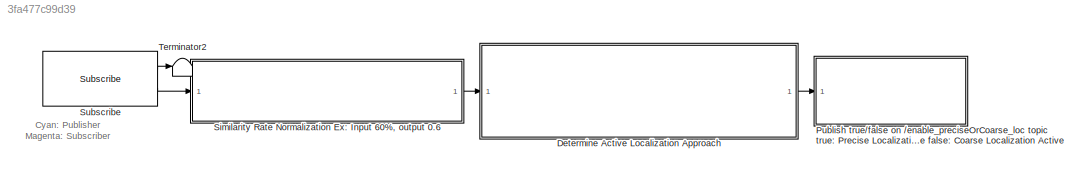
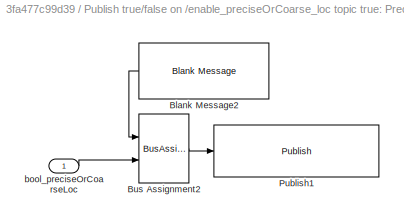
MODEL slx_3fa477c99d39
KIND model
CONFIG AbsTol = auto
CONFIG EnableMultiTasking = off
CONFIG FixedStep = auto
CONFIG MaxStep = auto
CONFIG MinStep = auto
CONFIG RelTol = 1e-3
CONFIG SampleTimeConstraint = Unconstrained
CONFIG SolverName = FixedStepAuto
CONFIG StartTime = 0.0
CONFIG StopTime = inf
WORKSPACE source: mxarray member
WORKSPACE SL_ROS_VariableLengthArrays_MaxSizes: object (value not decoded)
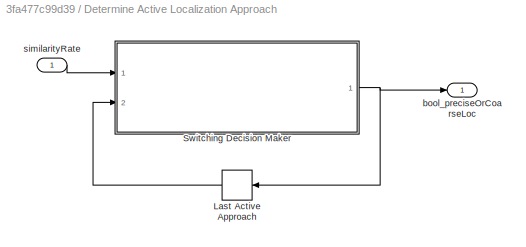
BLOCK [SubSystem] Determine Active Localization Approach
  Ports = [1, 1]
  RequestExecContextInheritance = off
BLOCK [Memory] Determine Active Localization Approach/Last Active Approach
  InitialCondition = false(1)
  NameLocation = top
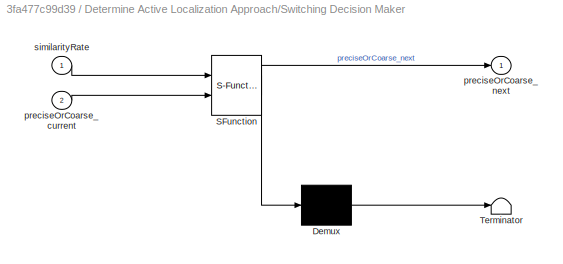
BLOCK [SubSystem] Determine Active Localization Approach/Switching Decision Maker
  ErrorFcn = Stateflow.Translate.translate
  PermitHierarchicalResolution = ExplicitOnly
  Ports = [2, 1]
  RequestExecContextInheritance = off
  SFBlockType = MATLAB Function
  TreatAsAtomicUnit = on
BLOCK [Demux] Determine Active Localization Approach/Switching Decision Maker/ Demux 
  Outputs = 1
  Ports = [1, 1]
BLOCK [S-Function] Determine Active Localization Approach/Switching Decision Maker/ SFunction 
  EnableBusSupport = on
  FunctionName = sf_sfun
  PortCounts = [2 2]
  Ports = [2, 2]
  SFcnIsStateOwnerBlock = off
  SFunctionDeploymentMode = off
  Tag = Stateflow S-Function 4
BLOCK [Terminator] Determine Active Localization Approach/Switching Decision Maker/ Terminator 
BLOCK [Inport] Determine Active Localization Approach/Switching Decision Maker/preciseOrCoarse_current
  Port = 2
BLOCK [Outport] Determine Active Localization Approach/Switching Decision Maker/preciseOrCoarse_next
  VectorParamsAs1DForOutWhenUnconnected = off
BLOCK [Inport] Determine Active Localization Approach/Switching Decision Maker/similarityRate
BLOCK [Outport] Determine Active Localization Approach/bool_preciseOrCoarseLoc
BLOCK [Inport] Determine Active Localization Approach/similarityRate
BLOCK [SubSystem] Publish true//false on //enable_preciseOrCoarse_loc topic true: Precise Localization Active false: Coarse Localization Active
  Ports = [1]
  RequestExecContextInheritance = off
BLOCK [Reference] Publish true//false on //enable_preciseOrCoarse_loc topic true: Precise Localization Active false: Coarse Localization Active/Blank Message2  REF=robotlib/Blank Message
  NameLocation = top
  Ports = [0, 1]
  SourceBlock = robotlib/Blank Message
  SourceProductBaseCode = RO
  SourceType = ROS Blank Message
BLOCK [BusAssignment] Publish true//false on //enable_preciseOrCoarse_loc topic true: Precise Localization Active false: Coarse Localization Active/Bus Assignment2
  AssignedSignals = Data
  Ports = [2, 1]
BLOCK [Reference] Publish true//false on //enable_preciseOrCoarse_loc topic true: Precise Localization Active false: Coarse Localization Active/Publish1  REF=robotlib/Publish
  Ports = [1]
  SourceBlock = robotlib/Publish
  SourceProductBaseCode = RO
  SourceType = ROS Publish
BLOCK [Inport] Publish true//false on //enable_preciseOrCoarse_loc topic true: Precise Localization Active false: Coarse Localization Active/bool_preciseOrCoarseLoc
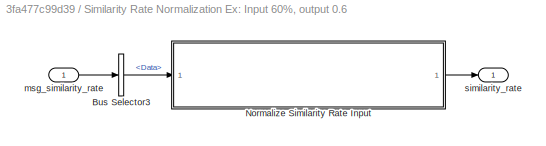
BLOCK [SubSystem] Similarity Rate Normalization Ex: Input 60%, output 0.6
  Ports = [1, 1]
  RequestExecContextInheritance = off
BLOCK [BusSelector] Similarity Rate Normalization Ex: Input 60%, output 0.6/Bus Selector3
  NameLocation = top
  OutputSignals = Data
  Ports = [1, 1]
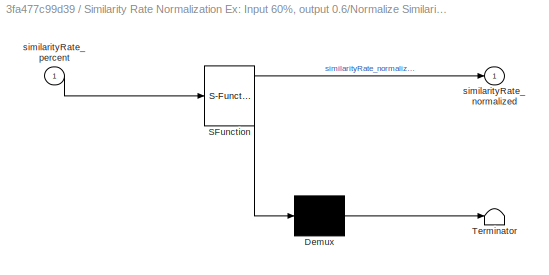
BLOCK [SubSystem] Similarity Rate Normalization Ex: Input 60%, output 0.6/Normalize Similarity Rate Input
  ErrorFcn = Stateflow.Translate.translate
  PermitHierarchicalResolution = ExplicitOnly
  Ports = [1, 1]
  RequestExecContextInheritance = off
  SFBlockType = MATLAB Function
  TreatAsAtomicUnit = on
BLOCK [Demux] Similarity Rate Normalization Ex: Input 60%, output 0.6/Normalize Similarity Rate Input/ Demux 
  Outputs = 1
  Ports = [1, 1]
BLOCK [S-Function] Similarity Rate Normalization Ex: Input 60%, output 0.6/Normalize Similarity Rate Input/ SFunction 
  EnableBusSupport = on
  FunctionName = sf_sfun
  PortCounts = [1 2]
  Ports = [1, 2]
  SFcnIsStateOwnerBlock = off
  SFunctionDeploymentMode = off
  Tag = Stateflow S-Function 6
BLOCK [Terminator] Similarity Rate Normalization Ex: Input 60%, output 0.6/Normalize Similarity Rate Input/ Terminator 
BLOCK [Outport] Similarity Rate Normalization Ex: Input 60%, output 0.6/Normalize Similarity Rate Input/similarityRate_normalized
  VectorParamsAs1DForOutWhenUnconnected = off
BLOCK [Inport] Similarity Rate Normalization Ex: Input 60%, output 0.6/Normalize Similarity Rate Input/similarityRate_percent
BLOCK [Inport] Similarity Rate Normalization Ex: Input 60%, output 0.6/msg_similarity_rate
BLOCK [Outport] Similarity Rate Normalization Ex: Input 60%, output 0.6/similarity_rate
BLOCK [Reference] Subscribe  REF=robotlib/Subscribe
  Ports = [0, 2]
  SourceBlock = robotlib/Subscribe
  SourceProductBaseCode = RR
  SourceType = ROS Subscribe
BLOCK [Terminator] Terminator2
ANNOTATION (root): Cyan: Publisher Magenta: Subscriber
LINE Determine Active Localization Approach/Last Active Approach:1 -> Determine Active Localization Approach/Switching Decision Maker:2
NET Determine Active Localization Approach/Switching Decision Maker:1 -> Determine Active Localization Approach/Last Active Approach:1, Determine Active Localization Approach/bool_preciseOrCoarseLoc:1
LINE Determine Active Localization Approach/similarityRate:1 -> Determine Active Localization Approach/Switching Decision Maker:1
LINE Determine Active Localization Approach:1 -> Publish true//false on //enable_preciseOrCoarse_loc topic true: Precise Localization Active false: Coarse Localization Active:1
LINE Publish true//false on //enable_preciseOrCoarse_loc topic true: Precise Localization Active false: Coarse Localization Active/Blank Message2:1 -> Publish true//false on //enable_preciseOrCoarse_loc topic true: Precise Localization Active false: Coarse Localization Active/Bus Assignment2:1
LINE Publish true//false on //enable_preciseOrCoarse_loc topic true: Precise Localization Active false: Coarse Localization Active/Bus Assignment2:1 -> Publish true//false on //enable_preciseOrCoarse_loc topic true: Precise Localization Active false: Coarse Localization Active/Publish1:1
LINE Publish true//false on //enable_preciseOrCoarse_loc topic true: Precise Localization Active false: Coarse Localization Active/bool_preciseOrCoarseLoc:1 -> Publish true//false on //enable_preciseOrCoarse_loc topic true: Precise Localization Active false: Coarse Localization Active/Bus Assignment2:2
LINE Similarity Rate Normalization Ex: Input 60%, output 0.6/Bus Selector3:1 -> Similarity Rate Normalization Ex: Input 60%, output 0.6/Normalize Similarity Rate Input:1
LINE Similarity Rate Normalization Ex: Input 60%, output 0.6/Normalize Similarity Rate Input:1 -> Similarity Rate Normalization Ex: Input 60%, output 0.6/similarity_rate:1
LINE Similarity Rate Normalization Ex: Input 60%, output 0.6/msg_similarity_rate:1 -> Similarity Rate Normalization Ex: Input 60%, output 0.6/Bus Selector3:1
LINE Similarity Rate Normalization Ex: Input 60%, output 0.6:1 -> Determine Active Localization Approach:1
LINE Subscribe:1 -> Terminator2:1
LINE Subscribe:2 -> Similarity Rate Normalization Ex: Input 60%, output 0.6:1
note: NET lines group one-source signal fan-out (src -> all destinations, sorted); 1:1 wires keep LINE
CHART Determine Active Localization Approach/Switching Decision Maker states=1 transitions=1
  STATE_LABEL 'eML_blk_kernel()'
  STATE_LABEL 'SCRIPT:\nfunction preciseOrCoarse_next = SwitchOrNot(similarityRate,preciseOrCoarse_current)\n    if preciseOrCoarse_current % if precise localization is active\n        if similarityRate > 0.65\n            preciseOrCoarse_next = true(1); % precise localization enabled\n        else\n            preciseOrCoarse_next = false(1); % coarse localization enabled\n        end\n    elseif ~preciseOrCoarse_curre...<+304ch>'
CHART Similarity Rate Normalization
Ex: Input 60%, output 0.6/Normalize Similarity Rate Input states=1 transitions=1
  STATE_LABEL 'eML_blk_kernel()'
  STATE_LABEL 'SCRIPT:\nfunction similarityRate_normalized   = SimilarityRateNormalize(similarityRate_percent)\n    if isempty(similarityRate_percent) || isnan(similarityRate_percent) || isinf(similarityRate_percent) || similarityRate_percent < 0 || similarityRate_percent > 100\n        similarityRate_normalized = double(0.5); % default value 50 percent\n    else\n        similarityRate_normalized = double(similarity...<+32ch>'
CHART  states=0 transitions=0
CHART  states=0 transitions=0
